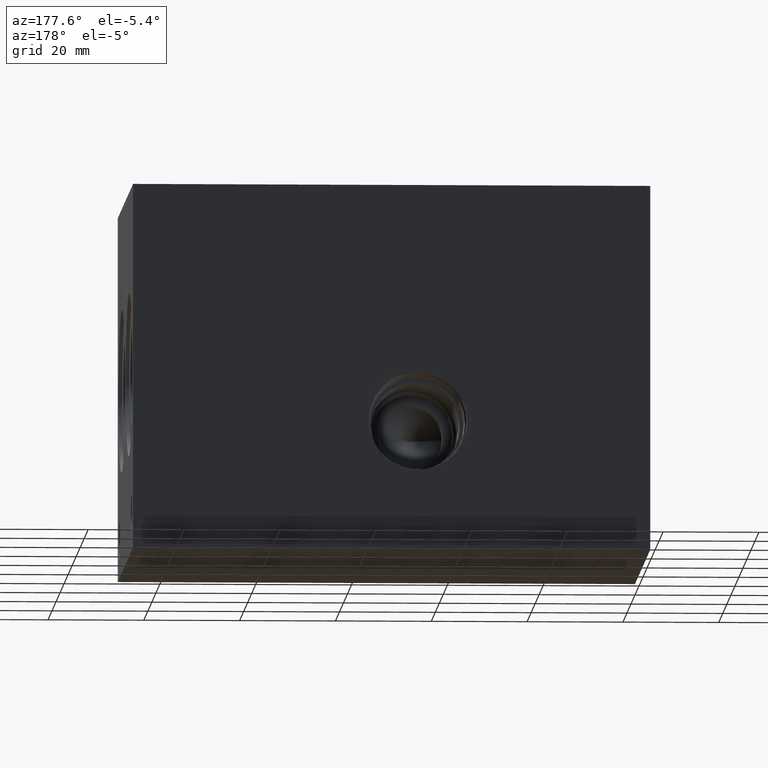
[diagram: clean part render]
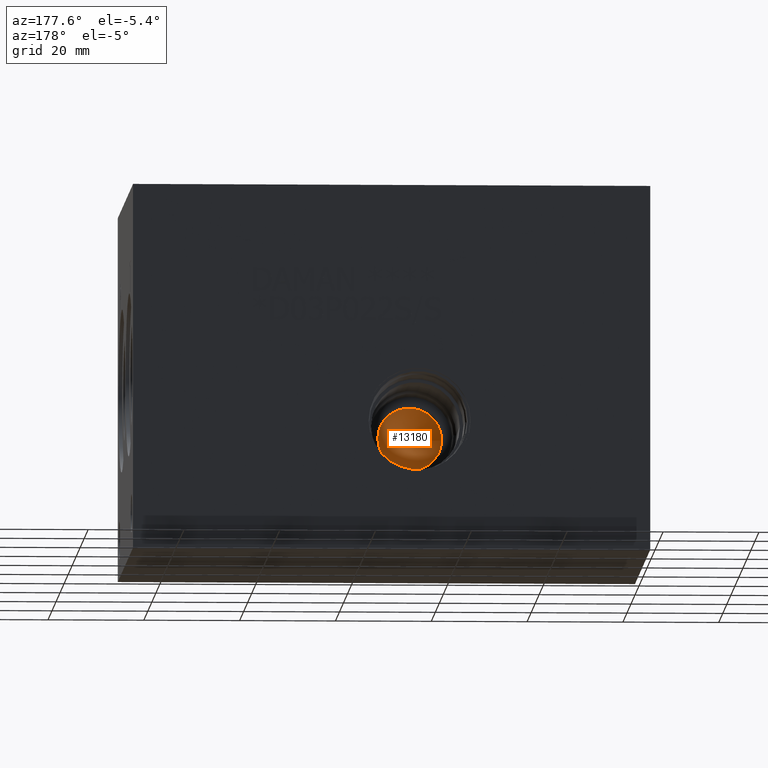
[diagram: same view with one face highlighted and labeled with its STEP entity id]
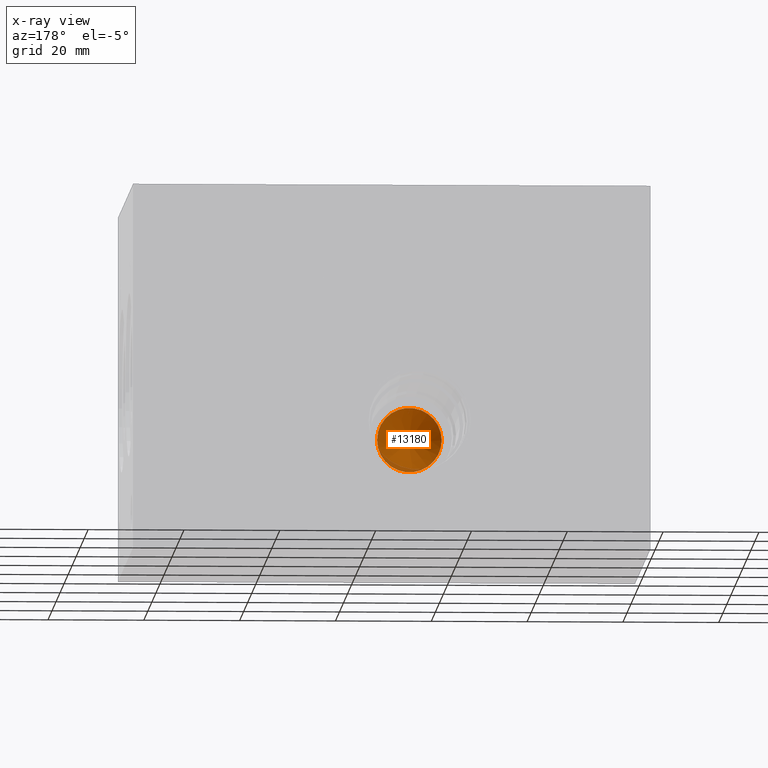
[diagram: x-ray of the same camera — body ghosted, the highlighted face saturated]
A machine part, auxiliary view. The second image highlights one B-rep face of the part: STEP entity #13180.
The next image is the same camera in x-ray: the body ghosted, the highlighted face saturated — about 5% of this face is hidden behind the body in this view.
In plain terms, the highlighted conical surface has half-angle 60 deg.
Its self-contained STEP definition (entity closure, byte-faithful):
#16=CONICAL_SURFACE('',#13754,6.7437,1.0471975523459);
#208=CIRCLE('',#13752,6.7437);
#209=CIRCLE('',#13753,6.7437);
#1646=FACE_OUTER_BOUND('',#2398,.T.);
#2398=EDGE_LOOP('',(#10934,#10935,#10936,#10937));
#3656=LINE('',#22306,#4830);
#4830=VECTOR('',#16013,6.7437);
#5940=VERTEX_POINT('',#22299);
#5941=VERTEX_POINT('',#22301);
#5942=VERTEX_POINT('',#22305);
#7689=EDGE_CURVE('',#5940,#5941,#208,.T.);
#7690=EDGE_CURVE('',#5941,#5940,#209,.T.);
#7691=EDGE_CURVE('',#5940,#5942,#3656,.T.);
#10934=ORIENTED_EDGE('',*,*,#7690,.F.);
#10935=ORIENTED_EDGE('',*,*,#7689,.F.);
#10936=ORIENTED_EDGE('',*,*,#7691,.T.);
#10937=ORIENTED_EDGE('',*,*,#7691,.F.);
#13180=ADVANCED_FACE('',(#1646),#16,.F.);
#13752=AXIS2_PLACEMENT_3D('',#22302,#16007,#16008);
#13753=AXIS2_PLACEMENT_3D('',#22303,#16009,#16010);
#13754=AXIS2_PLACEMENT_3D('',#22304,#16011,#16012);
#16007=DIRECTION('center_axis',(0.,-1.,0.));
#16008=DIRECTION('ref_axis',(1.,0.,0.));
#16009=DIRECTION('center_axis',(0.,-1.,0.));
#16010=DIRECTION('ref_axis',(1.,0.,0.));
#16011=DIRECTION('center_axis',(0.,1.,0.));
#16012=DIRECTION('ref_axis',(1.,0.,0.));
#16013=DIRECTION('',(0.86602540435909,-0.499999999004675,1.06057523942865E-16));
#22299=CARTESIAN_POINT('',(41.6687,31.437923,26.9748));
#22301=CARTESIAN_POINT('',(55.1561,31.437923,26.9748));
#22302=CARTESIAN_POINT('Origin',(48.4124,31.437923,26.9748));
#22303=CARTESIAN_POINT('Origin',(48.4124,31.437923,26.9748));
#22304=CARTESIAN_POINT('Origin',(48.4124,31.437923,26.9748));
#22305=CARTESIAN_POINT('',(48.4124,27.544446,26.9748));
#22306=CARTESIAN_POINT('',(41.6687,31.437923,26.9748));